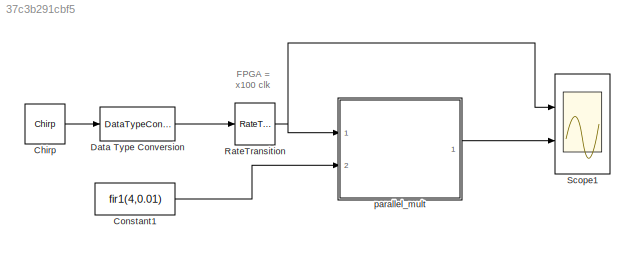
MODEL slx_37c3b291cbf5
KIND model
CONFIG AbsTol = auto
CONFIG FixedStep = auto
CONFIG MaxStep = auto
CONFIG MinStep = auto
CONFIG RelTol = 1e-3
CONFIG SampleTimeConstraint = Unconstrained
CONFIG Solver = FixedStepDiscrete
CONFIG SolverMode = SingleTasking
CONFIG SolverName = FixedStepDiscrete
CONFIG StartTime = 0.0
CONFIG StopTime = 10
BLOCK [Reference] Chirp  REF=dspsrcs4/Chirp
  Ports = [0, 1]
  SourceBlock = dspsrcs4/Chirp
  SourceType = Chirp
BLOCK [Constant] Constant1
  OutDataTypeStr = fixdt(1,16,14)
  SampleTime = -1
  Value = fir1(4,0.01)
BLOCK [DataTypeConversion] Data Type Conversion
  OutDataTypeStr = fixdt(1,16,14)
  RndMeth = Floor
  SaturateOnIntegerOverflow = off
BLOCK [RateTransition] RateTransition
  OutPortSampleTime = 2e-6
  OutPortSampleTimeMultiple = 1 %1/100
  OutPortSampleTimeOpt = Multiple of input port sample time
BLOCK [Scope] Scope1
  NumInputPorts = 2
  Ports = [2]
  ScopeSpecificationString = Simulink.scopes.TimeScopeBlockCfg('CurrentConfiguration', extmgr.ConfigurationSet(extmgr.Configuration('Core','General UI',true),extmgr.Configuration('Core','Source UI',true),extmgr.Configuration('Sources','WiredSimulink',true,'DataLoggingSaveFormat','StructureWithTime','DataLoggingDecimation','1','DataLoggingDecimateData',true),extmgr.Configuration('Visuals','Time Domain',true,'SerializedDisplays...<+2335ch>
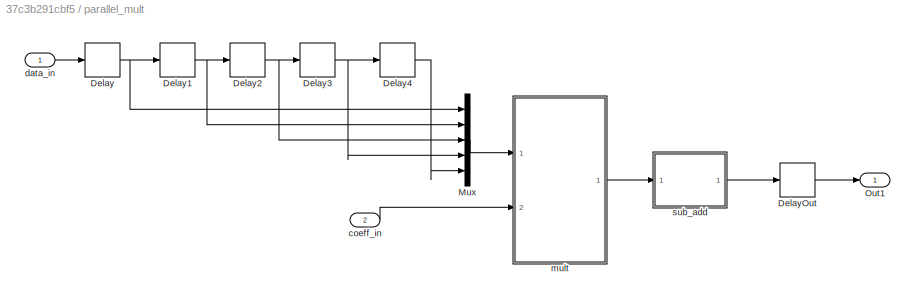
BLOCK [SubSystem] parallel_mult
  Ports = [2, 1]
  RequestExecContextInheritance = off
  Variant = off
BLOCK [Delay] parallel_mult/Delay
  DelayLength = 1
  InputPortMap = u0
  Ports = [1, 1]
BLOCK [Delay] parallel_mult/Delay1
  DelayLength = 1
  InputPortMap = u0
  Ports = [1, 1]
BLOCK [Delay] parallel_mult/Delay2
  DelayLength = 1
  InputPortMap = u0
  Ports = [1, 1]
BLOCK [Delay] parallel_mult/Delay3
  DelayLength = 1
  InputPortMap = u0
  Ports = [1, 1]
BLOCK [Delay] parallel_mult/Delay4
  DelayLength = 1
  InputPortMap = u0
  Ports = [1, 1]
BLOCK [Delay] parallel_mult/DelayOut
  DelayLength = 1
  InputPortMap = u0
  Ports = [1, 1]
BLOCK [Mux] parallel_mult/Mux
  DisplayOption = bar
  Inputs = 5
  Ports = [5, 1]
BLOCK [Outport] parallel_mult/Out1
  IconDisplay = Port number
BLOCK [Inport] parallel_mult/coeff_in
  IconDisplay = Port number
  Port = 2
BLOCK [Inport] parallel_mult/data_in
  IconDisplay = Port number
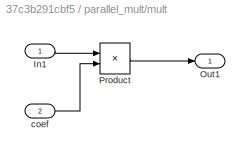
BLOCK [SubSystem] parallel_mult/mult
  Ports = [2, 1]
  RequestExecContextInheritance = off
  Variant = off
BLOCK [Inport] parallel_mult/mult/In1
  IconDisplay = Port number
BLOCK [Outport] parallel_mult/mult/Out1
  IconDisplay = Port number
BLOCK [Product] parallel_mult/mult/Product
  InputSameDT = off
  OutDataTypeStr = Inherit: Inherit via internal rule
  Ports = [2, 1]
  SaturateOnIntegerOverflow = off
BLOCK [Inport] parallel_mult/mult/coef
  IconDisplay = Port number
  Port = 2
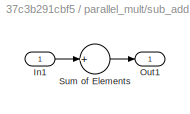
BLOCK [SubSystem] parallel_mult/sub_add
  Ports = [1, 1]
  RequestExecContextInheritance = off
  Variant = off
BLOCK [Inport] parallel_mult/sub_add/In1
  IconDisplay = Port number
BLOCK [Outport] parallel_mult/sub_add/Out1
  IconDisplay = Port number
BLOCK [Sum] parallel_mult/sub_add/Sum of Elements
  InputSameDT = off
  Inputs = +
  OutDataTypeStr = Inherit: Inherit via internal rule
  Ports = [1, 1]
  SaturateOnIntegerOverflow = off
ANNOTATION (root): FPGA = x100 clk
LINE Chirp:1 -> Data Type Conversion:1
LINE Constant1:1 -> parallel_mult:2
LINE Data Type Conversion:1 -> RateTransition:1
NET RateTransition:1 -> Scope1:1, parallel_mult:1
NET parallel_mult/Delay1:1 -> parallel_mult/Delay2:1, parallel_mult/Mux:2
NET parallel_mult/Delay2:1 -> parallel_mult/Delay3:1, parallel_mult/Mux:3
NET parallel_mult/Delay3:1 -> parallel_mult/Delay4:1, parallel_mult/Mux:4
LINE parallel_mult/Delay4:1 -> parallel_mult/Mux:5
NET parallel_mult/Delay:1 -> parallel_mult/Delay1:1, parallel_mult/Mux:1
LINE parallel_mult/DelayOut:1 -> parallel_mult/Out1:1
LINE parallel_mult/Mux:1 -> parallel_mult/mult:1
LINE parallel_mult/coeff_in:1 -> parallel_mult/mult:2
LINE parallel_mult/data_in:1 -> parallel_mult/Delay:1
LINE parallel_mult/mult/In1:1 -> parallel_mult/mult/Product:1
LINE parallel_mult/mult/Product:1 -> parallel_mult/mult/Out1:1
LINE parallel_mult/mult/coef:1 -> parallel_mult/mult/Product:2
LINE parallel_mult/mult:1 -> parallel_mult/sub_add:1
LINE parallel_mult/sub_add/In1:1 -> parallel_mult/sub_add/Sum of Elements:1
LINE parallel_mult/sub_add/Sum of Elements:1 -> parallel_mult/sub_add/Out1:1
LINE parallel_mult/sub_add:1 -> parallel_mult/DelayOut:1
LINE parallel_mult:1 -> Scope1:2
note: NET lines group one-source signal fan-out (src -> all destinations, sorted); 1:1 wires keep LINE
